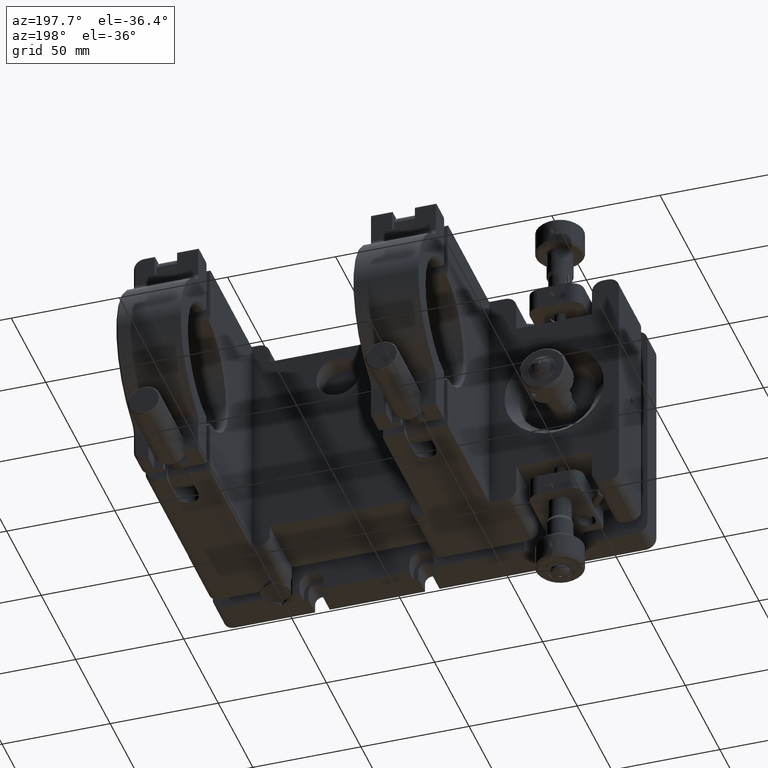
[diagram: clean part render]
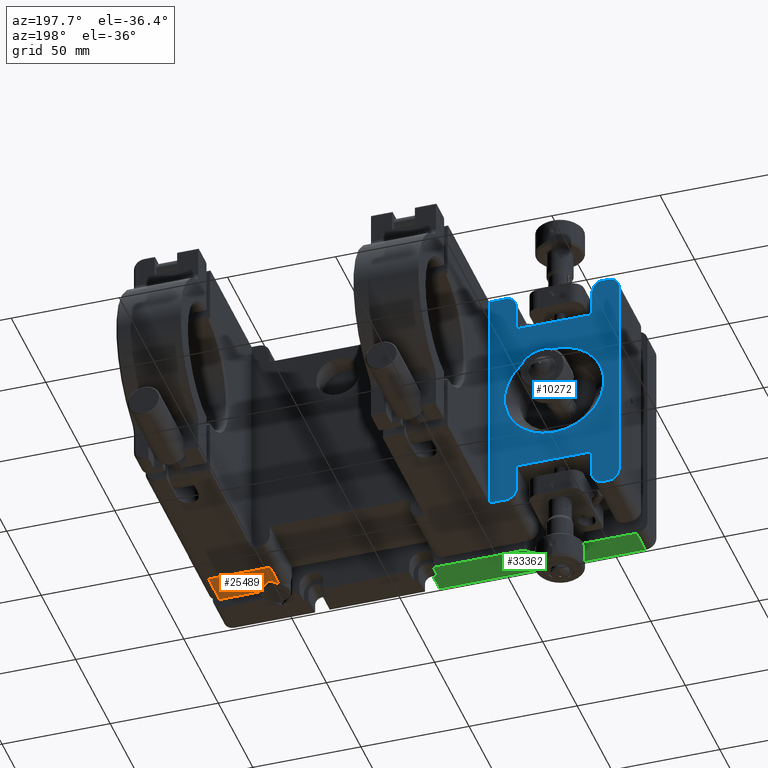
[diagram: same view with three faces highlighted in distinct colors, each labeled with its STEP entity id]
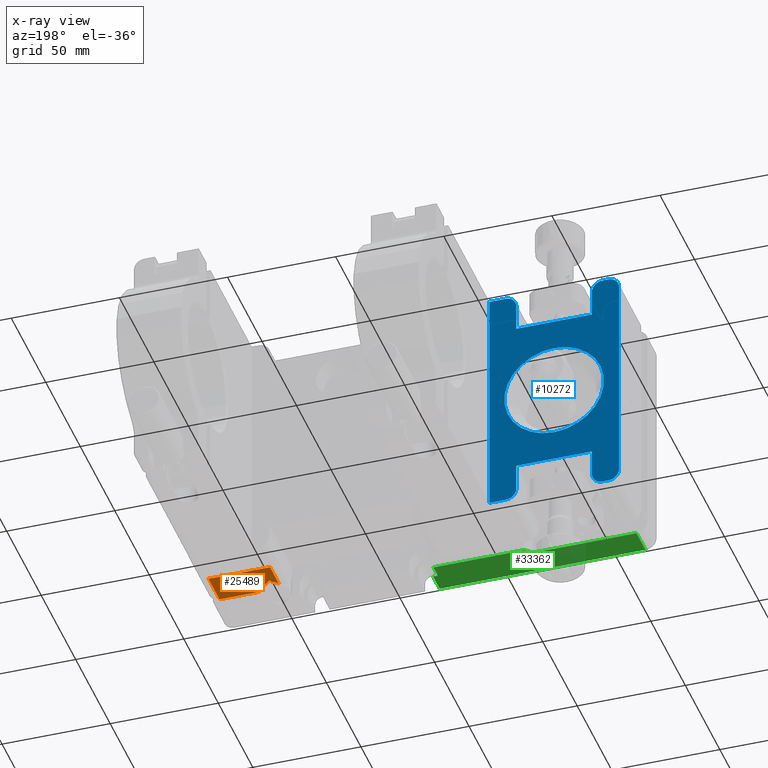
[diagram: x-ray of the same camera — body ghosted, the three highlighted faces saturated]
A machine part, auxiliary view with three faces highlighted in distinct colors.
The next image is the same camera in x-ray (body ghosted, the three faces saturated) — at least one of them is partly hidden behind the body in this view.
Their STEP definitions:

[orange] entity #25489 — the highlighted planar face has unit normal (0, -0, 1).
#1877 = DIRECTION ( 'NONE',  ( 1.000000000000000000, -2.498001805406559815E-16, -2.596082106320240853E-16 ) ) ;
#3319 = PLANE ( 'NONE',  #3890 ) ;
#3550 = VECTOR ( 'NONE', #13746, 1000.000000000000000 ) ;
#3597 = CARTESIAN_POINT ( 'NONE',  ( 94.99999999999998579, 13.99999999999967315, -54.99999999999995737 ) ) ;
#3890 = AXIS2_PLACEMENT_3D ( 'NONE', #40095, #33724, #9926 ) ;
#4757 = ORIENTED_EDGE ( 'NONE', *, *, #16318, .T. ) ;
#5166 = CARTESIAN_POINT ( 'NONE',  ( -100.0000000000000142, 13.99999999999972111, -54.99999999999990052 ) ) ;
#5517 = CARTESIAN_POINT ( 'NONE',  ( 69.64644660940669496, 20.33380951166213180, -54.99999999999995026 ) ) ;
#7920 = ORIENTED_EDGE ( 'NONE', *, *, #28329, .T. ) ;
#8398 = ORIENTED_EDGE ( 'NONE', *, *, #37590, .T. ) ;
#9230 = AXIS2_PLACEMENT_3D ( 'NONE', #42656, #35428, #12272 ) ;
#9861 = DIRECTION ( 'NONE',  ( 0.7071067811865453523, -0.7071067811865497932, -1.835707261896154690E-16 ) ) ;
#9926 = DIRECTION ( 'NONE',  ( -1.000000000000000000, 2.498001805406559815E-16, 2.596082106320240853E-16 ) ) ;
#10096 = DIRECTION ( 'NONE',  ( 0.7071067811865457964, 0.7071067811865492381, -1.835707261896030937E-16 ) ) ;
#11021 = LINE ( 'NONE', #24463, #34009 ) ;
#12147 = ORIENTED_EDGE ( 'NONE', *, *, #26642, .F. ) ;
#12272 = DIRECTION ( 'NONE',  ( -1.000000000000000000, 0.000000000000000000, 0.000000000000000000 ) ) ;
#12368 = CARTESIAN_POINT ( 'NONE',  ( 94.99999999999998579, 13.99999999999967315, -54.99999999999995737 ) ) ;
#12653 = EDGE_CURVE ( 'NONE', #24340, #26792, #14161, .T. ) ;
#12955 = EDGE_CURVE ( 'NONE', #28006, #26409, #41735, .T. ) ;
#13700 = EDGE_LOOP ( 'NONE', ( #7920, #4757, #13944, #16260, #23145, #12147, #8398 ) ) ;
#13746 = DIRECTION ( 'NONE',  ( -2.498001805406643138E-16, -1.000000000000000000, -8.770748185287584725E-30 ) ) ;
#13944 = ORIENTED_EDGE ( 'NONE', *, *, #12955, .F. ) ;
#14161 = CIRCLE ( 'NONE', #9230, 0.5000000000000143219 ) ;
#15218 = CARTESIAN_POINT ( 'NONE',  ( 76.68736290225568553, 13.99999999999967848, -54.99999999999995026 ) ) ;
#15322 = VERTEX_POINT ( 'NONE', #18789 ) ;
#15708 = VECTOR ( 'NONE', #9861, 1000.000000000000114 ) ;
#16260 = ORIENTED_EDGE ( 'NONE', *, *, #40458, .F. ) ;
#16318 = EDGE_CURVE ( 'NONE', #15322, #26409, #33786, .T. ) ;
#18789 = CARTESIAN_POINT ( 'NONE',  ( 94.99999999999990052, 29.99999999999967315, -54.99999999999995737 ) ) ;
#23145 = ORIENTED_EDGE ( 'NONE', *, *, #12653, .F. ) ;
#24340 = VERTEX_POINT ( 'NONE', #5517 ) ;
#24463 = CARTESIAN_POINT ( 'NONE',  ( -100.0000000000000995, 29.99999999999972289, -54.99999999999990052 ) ) ;
#24931 = CARTESIAN_POINT ( 'NONE',  ( 66.49999999999990052, 29.99999999999968026, -54.99999999999994316 ) ) ;
#25166 = CARTESIAN_POINT ( 'NONE',  ( 66.49999999999998579, 13.99999999999968026, -54.99999999999994316 ) ) ;
#25489 = ADVANCED_FACE ( 'NONE', ( #40970 ), #3319, .F. ) ;
#26255 = VERTEX_POINT ( 'NONE', #24931 ) ;
#26409 = VERTEX_POINT ( 'NONE', #12368 ) ;
#26642 = EDGE_CURVE ( 'NONE', #41296, #24340, #26838, .T. ) ;
#26792 = VERTEX_POINT ( 'NONE', #33341 ) ;
#26838 = LINE ( 'NONE', #40252, #26940 ) ;
#26940 = VECTOR ( 'NONE', #10096, 1000.000000000000114 ) ;
#27066 = LINE ( 'NONE', #43342, #15708 ) ;
#28006 = VERTEX_POINT ( 'NONE', #15218 ) ;
#28329 = EDGE_CURVE ( 'NONE', #26255, #15322, #11021, .T. ) ;
#32512 = VECTOR ( 'NONE', #42332, 1000.000000000000000 ) ;
#33341 = CARTESIAN_POINT ( 'NONE',  ( 70.35355339059326241, 20.33380951166213180, -54.99999999999995026 ) ) ;
#33724 = DIRECTION ( 'NONE',  ( 2.596082106320240853E-16, -1.312014193459549147E-29, 1.000000000000000000 ) ) ;
#33786 = LINE ( 'NONE', #3597, #3550 ) ;
#34009 = VECTOR ( 'NONE', #37901, 1000.000000000000000 ) ;
#35428 = DIRECTION ( 'NONE',  ( -2.596082106320713677E-16, 1.312014193459550268E-29, -1.000000000000000000 ) ) ;
#35929 = CARTESIAN_POINT ( 'NONE',  ( 66.49999999999998579, 17.18736290225541197, -54.99999999999994316 ) ) ;
#37590 = EDGE_CURVE ( 'NONE', #41296, #26255, #41907, .T. ) ;
#37901 = DIRECTION ( 'NONE',  ( 1.000000000000000000, -2.498001805406559815E-16, -2.596082106320240853E-16 ) ) ;
#40095 = CARTESIAN_POINT ( 'NONE',  ( -100.0000000000000142, 13.99999999999972111, -54.99999999999990052 ) ) ;
#40252 = CARTESIAN_POINT ( 'NONE',  ( 69.64644660940669496, 20.33380951166213180, -54.99999999999995026 ) ) ;
#40458 = EDGE_CURVE ( 'NONE', #26792, #28006, #27066, .T. ) ;
#40863 = VECTOR ( 'NONE', #1877, 1000.000000000000000 ) ;
#40970 = FACE_OUTER_BOUND ( 'NONE', #13700, .T. ) ;
#41296 = VERTEX_POINT ( 'NONE', #35929 ) ;
#41735 = LINE ( 'NONE', #5166, #40863 ) ;
#41907 = LINE ( 'NONE', #25166, #32512 ) ;
#42332 = DIRECTION ( 'NONE',  ( 2.498001805406643138E-16, 1.000000000000000000, 8.770748185287584725E-30 ) ) ;
#42656 = CARTESIAN_POINT ( 'NONE',  ( 69.99999999999998579, 19.98025612106885163, -54.99999999999995026 ) ) ;
#43342 = CARTESIAN_POINT ( 'NONE',  ( 76.68736290225568553, 13.99999999999967848, -54.99999999999995026 ) ) ;

[blue] entity #10272 — the highlighted planar face has unit normal (0, -1, 0).
#461 = AXIS2_PLACEMENT_3D ( 'NONE', #6819, #23553, #12988 ) ;
#1076 = CARTESIAN_POINT ( 'NONE',  ( -99.99999999999998579, 46.09999999999966036, -50.00000000000000711 ) ) ;
#1149 = EDGE_CURVE ( 'NONE', #8830, #28900, #26141, .T. ) ;
#2368 = CARTESIAN_POINT ( 'NONE',  ( -52.49999999999999289, 46.09999999999966036, 37.50000000000000000 ) ) ;
#2388 = EDGE_LOOP ( 'NONE', ( #11149 ) ) ;
#2469 = DIRECTION ( 'NONE',  ( -0.000000000000000000, 1.000000000000000000, -0.000000000000000000 ) ) ;
#2564 = DIRECTION ( 'NONE',  ( 0.000000000000000000, 0.000000000000000000, -1.000000000000000000 ) ) ;
#2763 = VERTEX_POINT ( 'NONE', #23177 ) ;
#3026 = PLANE ( 'NONE',  #22234 ) ;
#3109 = CARTESIAN_POINT ( 'NONE',  ( -92.49999999999998579, 46.09999999999966036, -50.00000000000000000 ) ) ;
#3454 = EDGE_CURVE ( 'NONE', #16615, #16615, #17100, .T. ) ;
#3484 = ORIENTED_EDGE ( 'NONE', *, *, #31295, .F. ) ;
#4363 = DIRECTION ( 'NONE',  ( -0.000000000000000000, 1.000000000000000000, -0.000000000000000000 ) ) ;
#4711 = LINE ( 'NONE', #30937, #40372 ) ;
#4967 = ORIENTED_EDGE ( 'NONE', *, *, #11799, .T. ) ;
#5012 = VECTOR ( 'NONE', #28993, 1000.000000000000000 ) ;
#5121 = AXIS2_PLACEMENT_3D ( 'NONE', #3109, #4363, #31255 ) ;
#6370 = CARTESIAN_POINT ( 'NONE',  ( -92.49999999999998579, 46.09999999999966036, 55.00000000000000000 ) ) ;
#6634 = DIRECTION ( 'NONE',  ( -0.000000000000000000, -0.000000000000000000, 1.000000000000000000 ) ) ;
#6819 = CARTESIAN_POINT ( 'NONE',  ( -92.49999999999998579, 46.09999999999966036, 50.00000000000000000 ) ) ;
#6842 = VECTOR ( 'NONE', #39809, 1000.000000000000000 ) ;
#7243 = AXIS2_PLACEMENT_3D ( 'NONE', #33526, #33946, #40319 ) ;
#8306 = ORIENTED_EDGE ( 'NONE', *, *, #23712, .T. ) ;
#8307 = ORIENTED_EDGE ( 'NONE', *, *, #36842, .T. ) ;
#8770 = CARTESIAN_POINT ( 'NONE',  ( -99.99999999999998579, 46.09999999999966036, -55.00000000000000000 ) ) ;
#8830 = VERTEX_POINT ( 'NONE', #26816 ) ;
#9251 = AXIS2_PLACEMENT_3D ( 'NONE', #11592, #42405, #41543 ) ;
#9934 = VERTEX_POINT ( 'NONE', #37881 ) ;
#10272 = ADVANCED_FACE ( 'NONE', ( #26828, #36968 ), #3026, .F. ) ;
#11149 = ORIENTED_EDGE ( 'NONE', *, *, #3454, .T. ) ;
#11592 = CARTESIAN_POINT ( 'NONE',  ( -47.49999999999999289, 46.09999999999966036, -50.00000000000000000 ) ) ;
#11799 = EDGE_CURVE ( 'NONE', #12436, #19637, #15901, .T. ) ;
#12227 = CARTESIAN_POINT ( 'NONE',  ( -39.99999999999996447, 46.09999999999966036, 55.00000000000000000 ) ) ;
#12436 = VERTEX_POINT ( 'NONE', #6370 ) ;
#12513 = DIRECTION ( 'NONE',  ( 0.000000000000000000, -1.000000000000000000, 0.000000000000000000 ) ) ;
#12514 = DIRECTION ( 'NONE',  ( -0.000000000000000000, -0.000000000000000000, 1.000000000000000000 ) ) ;
#12988 = DIRECTION ( 'NONE',  ( 0.000000000000000000, 0.000000000000000000, -1.000000000000000000 ) ) ;
#13178 = LINE ( 'NONE', #18876, #33922 ) ;
#13309 = ORIENTED_EDGE ( 'NONE', *, *, #15606, .T. ) ;
#13351 = LINE ( 'NONE', #20374, #28354 ) ;
#13561 = CIRCLE ( 'NONE', #7243, 4.999999999999997335 ) ;
#13575 = CIRCLE ( 'NONE', #5121, 4.999999999999997335 ) ;
#14250 = LINE ( 'NONE', #27713, #29997 ) ;
#14282 = ORIENTED_EDGE ( 'NONE', *, *, #38587, .F. ) ;
#14779 = VERTEX_POINT ( 'NONE', #25298 ) ;
#15274 = CARTESIAN_POINT ( 'NONE',  ( -87.49999999999998579, 46.09999999999966036, -50.00000000000000000 ) ) ;
#15462 = DIRECTION ( 'NONE',  ( 0.000000000000000000, -0.000000000000000000, -1.000000000000000000 ) ) ;
#15606 = EDGE_CURVE ( 'NONE', #29234, #35571, #17140, .T. ) ;
#15836 = LINE ( 'NONE', #42711, #36602 ) ;
#15885 = VERTEX_POINT ( 'NONE', #40435 ) ;
#15888 = CIRCLE ( 'NONE', #18711, 4.999999999999997335 ) ;
#15901 = CIRCLE ( 'NONE', #461, 4.999999999999997335 ) ;
#16021 = DIRECTION ( 'NONE',  ( 0.000000000000000000, 0.000000000000000000, -1.000000000000000000 ) ) ;
#16075 = DIRECTION ( 'NONE',  ( 1.261617073437677999E-16, 0.000000000000000000, 1.000000000000000000 ) ) ;
#16498 = VERTEX_POINT ( 'NONE', #25368 ) ;
#16615 = VERTEX_POINT ( 'NONE', #33797 ) ;
#16909 = DIRECTION ( 'NONE',  ( 0.000000000000000000, 0.000000000000000000, -1.000000000000000000 ) ) ;
#16921 = EDGE_CURVE ( 'NONE', #8830, #14779, #15836, .T. ) ;
#17057 = VECTOR ( 'NONE', #42127, 1000.000000000000000 ) ;
#17100 = CIRCLE ( 'NONE', #19891, 23.00000000000002132 ) ;
#17140 = LINE ( 'NONE', #17369, #41493 ) ;
#17369 = CARTESIAN_POINT ( 'NONE',  ( -99.99999999999998579, 46.09999999999966036, 55.00000000000000000 ) ) ;
#18711 = AXIS2_PLACEMENT_3D ( 'NONE', #40118, #2469, #33543 ) ;
#18876 = CARTESIAN_POINT ( 'NONE',  ( -99.99999999999998579, 46.09999999999966036, 55.00000000000000000 ) ) ;
#18978 = LINE ( 'NONE', #28722, #17057 ) ;
#19208 = CARTESIAN_POINT ( 'NONE',  ( -99.99999999999998579, 46.09999999999966036, 50.00000000000000000 ) ) ;
#19637 = VERTEX_POINT ( 'NONE', #42593 ) ;
#19891 = AXIS2_PLACEMENT_3D ( 'NONE', #25720, #12513, #16021 ) ;
#19961 = EDGE_CURVE ( 'NONE', #29120, #26853, #13575, .T. ) ;
#20374 = CARTESIAN_POINT ( 'NONE',  ( -87.49999999999998579, 46.09999999999966036, -72.50000000000000000 ) ) ;
#20561 = VECTOR ( 'NONE', #16075, 1000.000000000000000 ) ;
#21139 = VERTEX_POINT ( 'NONE', #25205 ) ;
#22045 = VECTOR ( 'NONE', #32142, 1000.000000000000000 ) ;
#22067 = ORIENTED_EDGE ( 'NONE', *, *, #24554, .T. ) ;
#22234 = AXIS2_PLACEMENT_3D ( 'NONE', #23291, #36744, #15462 ) ;
#22750 = ORIENTED_EDGE ( 'NONE', *, *, #36445, .T. ) ;
#23177 = CARTESIAN_POINT ( 'NONE',  ( -47.49999999999999289, 46.09999999999966036, -55.00000000000000000 ) ) ;
#23291 = CARTESIAN_POINT ( 'NONE',  ( 100.0000000000000142, 46.09999999999966036, -55.00000000000000000 ) ) ;
#23553 = DIRECTION ( 'NONE',  ( -0.000000000000000000, 1.000000000000000000, -0.000000000000000000 ) ) ;
#23560 = DIRECTION ( 'NONE',  ( -1.000000000000000000, 0.000000000000000000, 0.000000000000000000 ) ) ;
#23712 = EDGE_CURVE ( 'NONE', #2763, #28900, #38144, .T. ) ;
#24207 = ORIENTED_EDGE ( 'NONE', *, *, #28829, .T. ) ;
#24554 = EDGE_CURVE ( 'NONE', #16498, #12436, #25680, .T. ) ;
#24664 = VECTOR ( 'NONE', #6634, 1000.000000000000000 ) ;
#24699 = ORIENTED_EDGE ( 'NONE', *, *, #1149, .F. ) ;
#25205 = CARTESIAN_POINT ( 'NONE',  ( -94.99999999999998579, 46.09999999999966036, -55.00000000000000000 ) ) ;
#25298 = CARTESIAN_POINT ( 'NONE',  ( -87.49999999999998579, 46.09999999999966036, -37.50000000000000000 ) ) ;
#25368 = CARTESIAN_POINT ( 'NONE',  ( -94.99999999999998579, 46.09999999999966036, 55.00000000000000000 ) ) ;
#25680 = LINE ( 'NONE', #35405, #5012 ) ;
#25720 = CARTESIAN_POINT ( 'NONE',  ( -70.00000000000000000, 46.09999999999966036, 3.089976191583687637E-15 ) ) ;
#25777 = EDGE_CURVE ( 'NONE', #9934, #29234, #41183, .T. ) ;
#26141 = LINE ( 'NONE', #39579, #6842 ) ;
#26460 = EDGE_CURVE ( 'NONE', #40051, #16498, #13561, .T. ) ;
#26816 = CARTESIAN_POINT ( 'NONE',  ( -52.49999999999999289, 46.09999999999966036, -37.50000000000000000 ) ) ;
#26828 = FACE_BOUND ( 'NONE', #2388, .T. ) ;
#26853 = VERTEX_POINT ( 'NONE', #38378 ) ;
#27078 = EDGE_LOOP ( 'NONE', ( #28257, #8306, #24699, #34777, #24207, #41243, #22750, #8307, #32950, #29048, #22067, #4967, #39487, #3484, #36409, #42796, #13309, #14282 ) ) ;
#27297 = CARTESIAN_POINT ( 'NONE',  ( -47.49999999999999289, 46.09999999999966036, 50.00000000000000000 ) ) ;
#27515 = DIRECTION ( 'NONE',  ( -0.000000000000000000, 1.000000000000000000, -0.000000000000000000 ) ) ;
#27713 = CARTESIAN_POINT ( 'NONE',  ( -99.99999999999998579, 46.09999999999966036, -55.00000000000000000 ) ) ;
#27842 = AXIS2_PLACEMENT_3D ( 'NONE', #27297, #27515, #16909 ) ;
#28063 = EDGE_CURVE ( 'NONE', #35667, #19637, #33071, .T. ) ;
#28257 = ORIENTED_EDGE ( 'NONE', *, *, #40247, .T. ) ;
#28354 = VECTOR ( 'NONE', #2564, 1000.000000000000000 ) ;
#28355 = DIRECTION ( 'NONE',  ( -1.000000000000000000, -0.000000000000000000, -0.000000000000000000 ) ) ;
#28722 = CARTESIAN_POINT ( 'NONE',  ( -52.49999999999999289, 46.09999999999966036, 37.50000000000000000 ) ) ;
#28829 = EDGE_CURVE ( 'NONE', #14779, #29120, #13351, .T. ) ;
#28900 = VERTEX_POINT ( 'NONE', #34061 ) ;
#28993 = DIRECTION ( 'NONE',  ( 1.000000000000000000, 0.000000000000000000, 0.000000000000000000 ) ) ;
#29048 = ORIENTED_EDGE ( 'NONE', *, *, #26460, .T. ) ;
#29120 = VERTEX_POINT ( 'NONE', #15274 ) ;
#29234 = VERTEX_POINT ( 'NONE', #29391 ) ;
#29391 = CARTESIAN_POINT ( 'NONE',  ( -47.49999999999999289, 46.09999999999966036, 55.00000000000000000 ) ) ;
#29576 = VERTEX_POINT ( 'NONE', #1076 ) ;
#29997 = VECTOR ( 'NONE', #28355, 1000.000000000000000 ) ;
#30597 = VERTEX_POINT ( 'NONE', #2368 ) ;
#30937 = CARTESIAN_POINT ( 'NONE',  ( -52.50000000000000711, 46.09999999999966036, -55.00000000000000000 ) ) ;
#31255 = DIRECTION ( 'NONE',  ( 0.000000000000000000, 0.000000000000000000, -1.000000000000000000 ) ) ;
#31295 = EDGE_CURVE ( 'NONE', #30597, #35667, #18978, .T. ) ;
#32142 = DIRECTION ( 'NONE',  ( -1.000000000000000000, -0.000000000000000000, -0.000000000000000000 ) ) ;
#32566 = LINE ( 'NONE', #8770, #22045 ) ;
#32623 = CARTESIAN_POINT ( 'NONE',  ( -39.99999999999997868, 46.09999999999966036, -54.99999999999998579 ) ) ;
#32950 = ORIENTED_EDGE ( 'NONE', *, *, #37899, .T. ) ;
#33061 = LINE ( 'NONE', #32623, #20561 ) ;
#33071 = LINE ( 'NONE', #36815, #24664 ) ;
#33526 = CARTESIAN_POINT ( 'NONE',  ( -94.99999999999998579, 46.09999999999966036, 50.00000000000000000 ) ) ;
#33543 = DIRECTION ( 'NONE',  ( 0.000000000000000000, 0.000000000000000000, -1.000000000000000000 ) ) ;
#33797 = CARTESIAN_POINT ( 'NONE',  ( -70.00000000000000000, 46.09999999999966036, -23.00000000000001776 ) ) ;
#33922 = VECTOR ( 'NONE', #12514, 1000.000000000000000 ) ;
#33946 = DIRECTION ( 'NONE',  ( -0.000000000000000000, 1.000000000000000000, -0.000000000000000000 ) ) ;
#34061 = CARTESIAN_POINT ( 'NONE',  ( -52.50000000000000711, 46.09999999999966036, -50.00000000000000000 ) ) ;
#34680 = DIRECTION ( 'NONE',  ( -0.000000000000000000, 0.000000000000000000, 1.000000000000000000 ) ) ;
#34777 = ORIENTED_EDGE ( 'NONE', *, *, #16921, .T. ) ;
#35405 = CARTESIAN_POINT ( 'NONE',  ( -99.99999999999998579, 46.09999999999966036, 55.00000000000000000 ) ) ;
#35571 = VERTEX_POINT ( 'NONE', #12227 ) ;
#35667 = VERTEX_POINT ( 'NONE', #41216 ) ;
#36409 = ORIENTED_EDGE ( 'NONE', *, *, #40932, .T. ) ;
#36445 = EDGE_CURVE ( 'NONE', #26853, #21139, #14250, .T. ) ;
#36602 = VECTOR ( 'NONE', #23560, 1000.000000000000000 ) ;
#36744 = DIRECTION ( 'NONE',  ( 0.000000000000000000, -1.000000000000000000, 0.000000000000000000 ) ) ;
#36815 = CARTESIAN_POINT ( 'NONE',  ( -87.49999999999998579, 46.09999999999966036, 72.50000000000000000 ) ) ;
#36842 = EDGE_CURVE ( 'NONE', #21139, #29576, #15888, .T. ) ;
#36968 = FACE_OUTER_BOUND ( 'NONE', #27078, .T. ) ;
#37881 = CARTESIAN_POINT ( 'NONE',  ( -52.50000000000000711, 46.09999999999966036, 50.00000000000000711 ) ) ;
#37899 = EDGE_CURVE ( 'NONE', #29576, #40051, #13178, .T. ) ;
#38144 = CIRCLE ( 'NONE', #9251, 4.999999999999997335 ) ;
#38378 = CARTESIAN_POINT ( 'NONE',  ( -92.49999999999998579, 46.09999999999966036, -55.00000000000000000 ) ) ;
#38587 = EDGE_CURVE ( 'NONE', #15885, #35571, #33061, .T. ) ;
#39487 = ORIENTED_EDGE ( 'NONE', *, *, #28063, .F. ) ;
#39579 = CARTESIAN_POINT ( 'NONE',  ( -52.50000000000000711, 46.09999999999966036, -55.00000000000000000 ) ) ;
#39809 = DIRECTION ( 'NONE',  ( 0.000000000000000000, 0.000000000000000000, -1.000000000000000000 ) ) ;
#40051 = VERTEX_POINT ( 'NONE', #19208 ) ;
#40118 = CARTESIAN_POINT ( 'NONE',  ( -94.99999999999998579, 46.09999999999966036, -50.00000000000000711 ) ) ;
#40247 = EDGE_CURVE ( 'NONE', #15885, #2763, #32566, .T. ) ;
#40319 = DIRECTION ( 'NONE',  ( 0.000000000000000000, 0.000000000000000000, -1.000000000000000000 ) ) ;
#40372 = VECTOR ( 'NONE', #34680, 1000.000000000000000 ) ;
#40435 = CARTESIAN_POINT ( 'NONE',  ( -39.99999999999996447, 46.09999999999966036, -55.00000000000000000 ) ) ;
#40704 = DIRECTION ( 'NONE',  ( 1.000000000000000000, 0.000000000000000000, 0.000000000000000000 ) ) ;
#40932 = EDGE_CURVE ( 'NONE', #30597, #9934, #4711, .T. ) ;
#41183 = CIRCLE ( 'NONE', #27842, 4.999999999999997335 ) ;
#41216 = CARTESIAN_POINT ( 'NONE',  ( -87.49999999999998579, 46.09999999999966036, 37.50000000000000000 ) ) ;
#41243 = ORIENTED_EDGE ( 'NONE', *, *, #19961, .T. ) ;
#41493 = VECTOR ( 'NONE', #40704, 1000.000000000000000 ) ;
#41543 = DIRECTION ( 'NONE',  ( 0.000000000000000000, 0.000000000000000000, -1.000000000000000000 ) ) ;
#42127 = DIRECTION ( 'NONE',  ( -1.000000000000000000, 0.000000000000000000, 0.000000000000000000 ) ) ;
#42405 = DIRECTION ( 'NONE',  ( -0.000000000000000000, 1.000000000000000000, -0.000000000000000000 ) ) ;
#42593 = CARTESIAN_POINT ( 'NONE',  ( -87.49999999999998579, 46.09999999999966036, 50.00000000000000000 ) ) ;
#42711 = CARTESIAN_POINT ( 'NONE',  ( -52.49999999999999289, 46.09999999999966036, -37.50000000000000000 ) ) ;
#42796 = ORIENTED_EDGE ( 'NONE', *, *, #25777, .T. ) ;

[green] entity #33362 — the highlighted planar face has unit normal (0, 0, 1).
#119 = LINE ( 'NONE', #7159, #39686 ) ;
#437 = DIRECTION ( 'NONE',  ( -1.000000000000000000, -0.000000000000000000, -0.000000000000000000 ) ) ;
#679 = VERTEX_POINT ( 'NONE', #29775 ) ;
#1135 = DIRECTION ( 'NONE',  ( 0.000000000000000000, 0.000000000000000000, 1.000000000000000000 ) ) ;
#2222 = CARTESIAN_POINT ( 'NONE',  ( -100.0000000000000284, 5.000000000000000000, -55.00000000000000000 ) ) ;
#4778 = DIRECTION ( 'NONE',  ( 0.7071067811865491270, 0.7071067811865459074, -0.000000000000000000 ) ) ;
#5369 = VERTEX_POINT ( 'NONE', #32254 ) ;
#6524 = VECTOR ( 'NONE', #13441, 1000.000000000000000 ) ;
#7159 = CARTESIAN_POINT ( 'NONE',  ( -95.00000000000002842, 8.000000000000000000, -55.00000000000000000 ) ) ;
#7828 = CARTESIAN_POINT ( 'NONE',  ( -1.956250000000016920, 8.000000000000000000, -55.00000000000000000 ) ) ;
#8274 = LINE ( 'NONE', #15299, #15605 ) ;
#8325 = EDGE_CURVE ( 'NONE', #5369, #33183, #119, .T. ) ;
#8851 = VERTEX_POINT ( 'NONE', #7828 ) ;
#9706 = LINE ( 'NONE', #36378, #6524 ) ;
#9758 = ORIENTED_EDGE ( 'NONE', *, *, #14080, .T. ) ;
#10824 = CARTESIAN_POINT ( 'NONE',  ( -1.956250000000016920, 1.650000000000000355, -55.00000000000000000 ) ) ;
#11897 = CARTESIAN_POINT ( 'NONE',  ( 0.2217999999999803462, 8.000000000000000000, -55.00000000000000000 ) ) ;
#13441 = DIRECTION ( 'NONE',  ( 1.000000000000000000, 0.000000000000000000, -0.000000000000000000 ) ) ;
#13790 = ORIENTED_EDGE ( 'NONE', *, *, #32318, .T. ) ;
#14080 = EDGE_CURVE ( 'NONE', #30368, #5369, #8274, .T. ) ;
#14401 = VERTEX_POINT ( 'NONE', #28920 ) ;
#14701 = VECTOR ( 'NONE', #4778, 1000.000000000000000 ) ;
#15299 = CARTESIAN_POINT ( 'NONE',  ( -100.0000000000000284, -8.000000000000000000, -55.00000000000000000 ) ) ;
#15605 = VECTOR ( 'NONE', #36023, 1000.000000000000000 ) ;
#15718 = ORIENTED_EDGE ( 'NONE', *, *, #34757, .F. ) ;
#17392 = CARTESIAN_POINT ( 'NONE',  ( 0.2217999999999803462, -8.000000000000000000, -55.00000000000000711 ) ) ;
#18088 = EDGE_CURVE ( 'NONE', #679, #14401, #28378, .T. ) ;
#18418 = EDGE_LOOP ( 'NONE', ( #24022, #18833, #15718, #13790, #26980, #39484, #9758, #40103 ) ) ;
#18701 = DIRECTION ( 'NONE',  ( 1.000000000000000000, 0.000000000000000000, -0.000000000000000000 ) ) ;
#18833 = ORIENTED_EDGE ( 'NONE', *, *, #18088, .T. ) ;
#20543 = VECTOR ( 'NONE', #29308, 1000.000000000000000 ) ;
#22018 = CARTESIAN_POINT ( 'NONE',  ( -100.0000000000000284, 8.000000000000000000, -55.00000000000000000 ) ) ;
#22983 = LINE ( 'NONE', #29811, #32609 ) ;
#24022 = ORIENTED_EDGE ( 'NONE', *, *, #28026, .F. ) ;
#24667 = VERTEX_POINT ( 'NONE', #25457 ) ;
#25433 = VECTOR ( 'NONE', #42522, 1000.000000000000000 ) ;
#25457 = CARTESIAN_POINT ( 'NONE',  ( 0.2217999999999803462, 1.650000000000000355, -55.00000000000000000 ) ) ;
#26980 = ORIENTED_EDGE ( 'NONE', *, *, #38595, .T. ) ;
#27233 = DIRECTION ( 'NONE',  ( -0.000000000000000000, 1.000000000000000000, -0.000000000000000000 ) ) ;
#28026 = EDGE_CURVE ( 'NONE', #679, #33183, #32409, .T. ) ;
#28378 = LINE ( 'NONE', #38491, #14701 ) ;
#28920 = CARTESIAN_POINT ( 'NONE',  ( -43.99999999999998579, 8.000000000000000000, -55.00000000000000000 ) ) ;
#29308 = DIRECTION ( 'NONE',  ( 0.000000000000000000, -1.000000000000000000, 0.000000000000000000 ) ) ;
#29775 = CARTESIAN_POINT ( 'NONE',  ( -47.00000000000000000, 5.000000000000000000, -55.00000000000000000 ) ) ;
#29811 = CARTESIAN_POINT ( 'NONE',  ( -1.956250000000020473, 8.000000000000000000, -55.00000000000000000 ) ) ;
#30184 = EDGE_CURVE ( 'NONE', #24667, #30368, #32394, .T. ) ;
#30368 = VERTEX_POINT ( 'NONE', #17392 ) ;
#31525 = PLANE ( 'NONE',  #37591 ) ;
#32169 = FACE_OUTER_BOUND ( 'NONE', #18418, .T. ) ;
#32254 = CARTESIAN_POINT ( 'NONE',  ( -95.00000000000002842, -8.000000000000000000, -55.00000000000000000 ) ) ;
#32318 = EDGE_CURVE ( 'NONE', #8851, #33254, #22983, .T. ) ;
#32394 = LINE ( 'NONE', #11897, #20543 ) ;
#32409 = LINE ( 'NONE', #2222, #25433 ) ;
#32609 = VECTOR ( 'NONE', #35983, 1000.000000000000000 ) ;
#33183 = VERTEX_POINT ( 'NONE', #42755 ) ;
#33254 = VERTEX_POINT ( 'NONE', #10824 ) ;
#33362 = ADVANCED_FACE ( 'NONE', ( #32169 ), #31525, .F. ) ;
#33440 = VECTOR ( 'NONE', #437, 1000.000000000000000 ) ;
#33491 = CARTESIAN_POINT ( 'NONE',  ( -100.0000000000000284, 8.000000000000000000, -55.00000000000000000 ) ) ;
#34757 = EDGE_CURVE ( 'NONE', #8851, #14401, #40933, .T. ) ;
#35983 = DIRECTION ( 'NONE',  ( 0.000000000000000000, -1.000000000000000000, 0.000000000000000000 ) ) ;
#36023 = DIRECTION ( 'NONE',  ( -1.000000000000000000, -0.000000000000000000, -0.000000000000000000 ) ) ;
#36378 = CARTESIAN_POINT ( 'NONE',  ( -100.0000000000000284, 1.650000000000000355, -55.00000000000000000 ) ) ;
#37591 = AXIS2_PLACEMENT_3D ( 'NONE', #22018, #1135, #18701 ) ;
#38491 = CARTESIAN_POINT ( 'NONE',  ( -47.00000000000000000, 4.999999999999997335, -55.00000000000000000 ) ) ;
#38595 = EDGE_CURVE ( 'NONE', #33254, #24667, #9706, .T. ) ;
#39484 = ORIENTED_EDGE ( 'NONE', *, *, #30184, .T. ) ;
#39686 = VECTOR ( 'NONE', #27233, 1000.000000000000000 ) ;
#40103 = ORIENTED_EDGE ( 'NONE', *, *, #8325, .T. ) ;
#40933 = LINE ( 'NONE', #33491, #33440 ) ;
#42522 = DIRECTION ( 'NONE',  ( -1.000000000000000000, 0.000000000000000000, 0.000000000000000000 ) ) ;
#42755 = CARTESIAN_POINT ( 'NONE',  ( -95.00000000000002842, 5.000000000000000000, -55.00000000000000711 ) ) ;